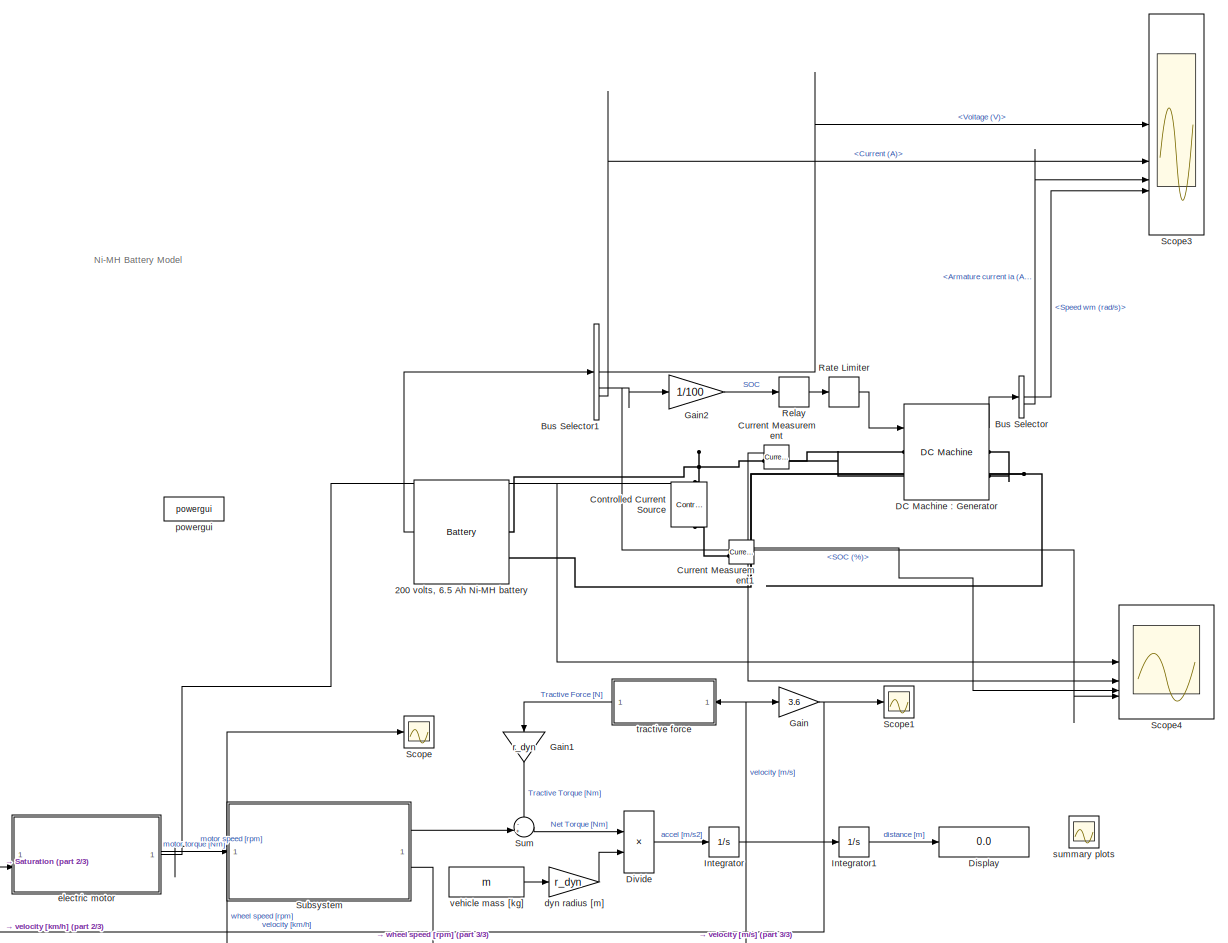
[diagram: root canvas - part 1/3, most of the canvas]
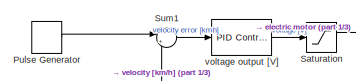
[diagram: root canvas - part 2/3, bottom left region]
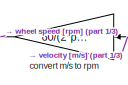
[diagram: root canvas - part 3/3, bottom center region]
MODEL slx_5a7b9795b255
KIND model
CONFIG AbsTol = auto
CONFIG EnableMultiTasking = off
CONFIG FixedStep = auto
CONFIG MaxStep = 0.05
CONFIG MinStep = auto
CONFIG RelTol = 1e-3
CONFIG SampleTimeConstraint = Unconstrained
CONFIG SolverName = VariableStepAuto
CONFIG StartTime = 0.0
CONFIG StopTime = 1000
BLOCK [Reference] 200 volts, 6.5 Ah Ni-MH battery   REF=spsBatteryLib/Battery
  LibrarySourceBlock = electricdrivelib/Extra Sources/Battery
  SourceBlock = spsBatteryLib/Battery
  SourceType = Battery
BLOCK [BusSelector] Bus Selector
  OutputSignals = Speed wm (rad/s),Armature current ia (A)
BLOCK [BusSelector] Bus Selector1
  OutputSignals = Voltage (V),SOC (%),Current (A)
BLOCK [Reference] Controlled Current Source  REF=spsControlledCurrentSourceLib/Controlled Current Source
  LibrarySourceBlock = sps_lib/Sources/Controlled Current Source
  NameLocation = left
  SourceBlock = spsControlledCurrentSourceLib/Controlled Current Source
  SourceType = Controlled Current Source
BLOCK [Reference] Current Measurement  REF=spsCurrentMeasurementLib/Current Measurement
  LibrarySourceBlock = sps_lib/Sensors and Measurements/Current Measurement
  NameLocation = top
  SourceBlock = spsCurrentMeasurementLib/Current Measurement
  SourceType = Current Measurement
  UserDataPersistent = on
BLOCK [Reference] Current Measurement1  REF=spsCurrentMeasurementLib/Current Measurement
  LibrarySourceBlock = sps_lib/Sensors and Measurements/Current Measurement
  SourceBlock = spsCurrentMeasurementLib/Current Measurement
  SourceType = Current Measurement
  UserDataPersistent = on
BLOCK [Reference] DC Machine : Generator  REF=spsDCMachineLib/DC Machine
  LibrarySourceBlock = sps_lib/Electrical Machines/DC Machine
  SourceBlock = spsDCMachineLib/DC Machine
  SourceType = DC machine
BLOCK [Display] Display
  Decimation = 1
BLOCK [Product] Divide
  Inputs = */
BLOCK [Gain] Gain
  Gain = 3.6
BLOCK [Gain] Gain1
  Gain = r_dyn
  NameLocation = left
BLOCK [Gain] Gain2
  Gain = 1/100
BLOCK [Integrator] Integrator
  LimitOutput = on
  LowerSaturationLimit = 0
BLOCK [Integrator] Integrator1
BLOCK [DiscretePulseGenerator] Pulse Generator
  Amplitude = 20
  Period = 100
  PulseType = Time based
  PulseWidth = 50
BLOCK [RateLimiter] Rate Limiter
  FallingSlewLimit = -100
  RisingSlewLimit = 100
BLOCK [Relay] Relay
  OffOutputValue = -200
  OffSwitchValue = 0.4
  OnOutputValue = 0
  OnSwitchValue = 0.95
BLOCK [Saturate] Saturation
  LowerLimit = 0
  UpperLimit = 48
BLOCK [Scope] Scope
  Floating = off
  NumInputPorts = 1
  ScopeSpecificationString = Simulink.scopes.TimeScopeBlockCfg('CurrentConfiguration', extmgr.ConfigurationSet(extmgr.Configuration('Core','General UI',true),extmgr.Configuration('Core','Source UI',true),extmgr.Configuration('Sources','WiredSimulink',true,'DataLoggingVariableName','ScopeData2'),extmgr.Configuration('Visuals','Time Domain',true,'SerializedDisplays',{struct('MinYLimReal','-110.92953','MaxYLimReal','998.36573','...<+1501ch>
BLOCK [Scope] Scope1
  Floating = off
  NumInputPorts = 1
  ScopeSpecificationString = Simulink.scopes.TimeScopeBlockCfg('CurrentConfiguration', extmgr.ConfigurationSet(extmgr.Configuration('Core','General UI',true),extmgr.Configuration('Core','Source UI',true),extmgr.Configuration('Sources','WiredSimulink',true,'DataLoggingVariableName','ScopeData2'),extmgr.Configuration('Visuals','Time Domain',true,'SerializedDisplays',{struct('MinYLimReal','-6.31861','MaxYLimReal','56.86748','YLa...<+1447ch>
BLOCK [Scope] Scope3
  Floating = off
  NumInputPorts = 4
  ScopeSpecificationString = Simulink.scopes.TimeScopeBlockCfg('CurrentConfiguration', extmgr.ConfigurationSet(extmgr.Configuration('Core','General UI',true),extmgr.Configuration('Core','Source UI',true),extmgr.Configuration('Sources','WiredSimulink',true,'DataLoggingVariableName','ScopeData1'),extmgr.Configuration('Visuals','Time Domain',true,'SerializedDisplays',{struct('MinYLimReal','-19.00599','MaxYLimReal','554.47233','Y...<+3506ch>
BLOCK [Scope] Scope4
  Floating = off
  NumInputPorts = 4
  ScopeSpecificationString = Simulink.scopes.TimeScopeBlockCfg('CurrentConfiguration', extmgr.ConfigurationSet(extmgr.Configuration('Core','General UI',true),extmgr.Configuration('Core','Source UI',true),extmgr.Configuration('Sources','WiredSimulink',true,'DataLoggingVariableName','ScopeData3'),extmgr.Configuration('Visuals','Time Domain',true,'SerializedDisplays',{struct('MinYLimReal','-500.00000','MaxYLimReal','500.00000','...<+3535ch>
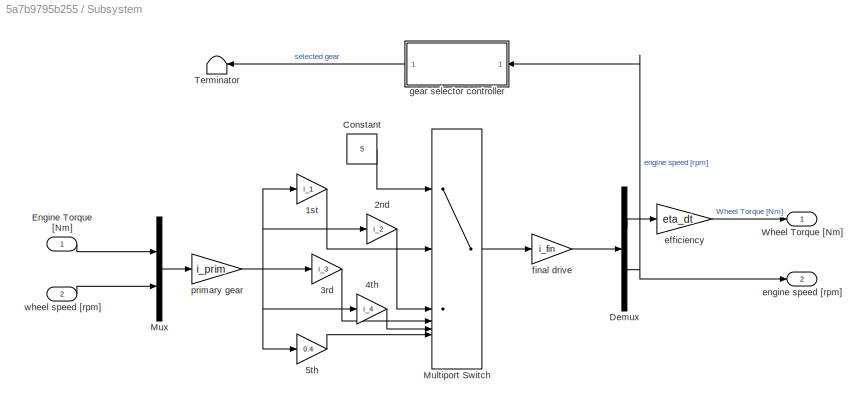
BLOCK [SubSystem] Subsystem
  PortSchema = {"entries":[{"content":{"sides":[{"content":{"connectorIds":["Out2","In1"]},"type":"ConnectorPlacement.EquallySpacedRectSide","uuid":"3db7130f-4414-4138-a483-769651bc2e03"},{"content":{"connectorIds":["Out1","In2"],"side":"RIGHT"},"type":"ConnectorPlacement.EquallySpacedRectSide","uuid":"89f2a1b6-eda5-4fe5-b7f3-89dce8f6cd7c"},{"content":{"connectorIds":[],"side":"TOP"},"type":"ConnectorPlacement.E...<+253ch>
BLOCK [Gain] Subsystem/1st
  Gain = i_1
BLOCK [Gain] Subsystem/2nd
  Gain = i_2
BLOCK [Gain] Subsystem/3rd
  Gain = i_3
BLOCK [Gain] Subsystem/4th
  Gain = i_4
BLOCK [Gain] Subsystem/5th
  Gain = 0.4
BLOCK [Constant] Subsystem/Constant
  Value = 5
BLOCK [Demux] Subsystem/Demux
  Outputs = 2
BLOCK [Inport] Subsystem/Engine Torque [Nm]
BLOCK [MultiPortSwitch] Subsystem/Multiport Switch
  InputSameDT = off
  Inputs = 5
  SaturateOnIntegerOverflow = off
BLOCK [Mux] Subsystem/Mux
  DisplayOption = bar
  Inputs = 2
BLOCK [Terminator] Subsystem/Terminator
BLOCK [Outport] Subsystem/Wheel Torque [Nm]
BLOCK [Gain] Subsystem/efficiency
  Gain = eta_dt
BLOCK [Outport] Subsystem/engine speed [rpm]
  Port = 2
BLOCK [Gain] Subsystem/final drive
  Gain = i_fin
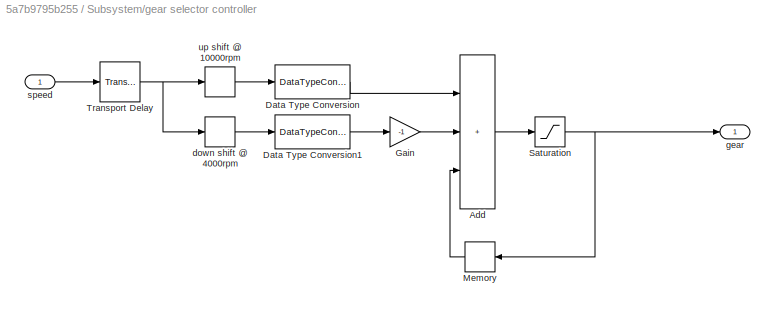
BLOCK [SubSystem] Subsystem/gear selector controller
BLOCK [Sum] Subsystem/gear selector controller/Add
  IconShape = rectangular
  Inputs = +++
BLOCK [DataTypeConversion] Subsystem/gear selector controller/Data Type Conversion
  RndMeth = Floor
  SaturateOnIntegerOverflow = off
BLOCK [DataTypeConversion] Subsystem/gear selector controller/Data Type Conversion1
  RndMeth = Floor
  SaturateOnIntegerOverflow = off
BLOCK [Gain] Subsystem/gear selector controller/Gain
  Gain = -1
BLOCK [Memory] Subsystem/gear selector controller/Memory
  InitialCondition = 1
BLOCK [Saturate] Subsystem/gear selector controller/Saturation
  LowerLimit = 1
  UpperLimit = 5
BLOCK [TransportDelay] Subsystem/gear selector controller/Transport Delay
  DelayTime = 0.01
BLOCK [HitCross] Subsystem/gear selector controller/down shift @ 4000rpm
  HitCrossingDirection = falling
  HitCrossingOffset = 2000
BLOCK [Outport] Subsystem/gear selector controller/gear
BLOCK [Inport] Subsystem/gear selector controller/speed
BLOCK [HitCross] Subsystem/gear selector controller/up shift @ 10000rpm
  HitCrossingDirection = rising
  HitCrossingOffset = 5000
BLOCK [Gain] Subsystem/primary gear
  Gain = i_prim
BLOCK [Inport] Subsystem/wheel speed [rpm]
  Port = 2
BLOCK [Sum] Sum
  Inputs = -+|
BLOCK [Sum] Sum1
  Inputs = |+-
BLOCK [Gain] convert m//s to rpm
  Gain = 60/(2*pi*r_dyn)
BLOCK [Gain] dyn radius [m]
  Gain = r_dyn
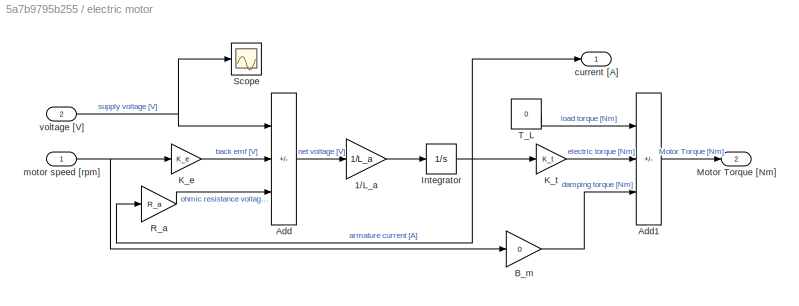
BLOCK [SubSystem] electric motor
BLOCK [Gain] electric motor/1//L_a
  Gain = 1/L_a
BLOCK [Sum] electric motor/Add
  IconShape = rectangular
  Inputs = +--
BLOCK [Sum] electric motor/Add1
  IconShape = rectangular
  Inputs = -+-
BLOCK [Gain] electric motor/B_m
  Gain = 0
BLOCK [Integrator] electric motor/Integrator
  LimitOutput = on
  LowerSaturationLimit = -400
  UpperSaturationLimit = 400
BLOCK [Gain] electric motor/K_e
  Gain = K_e
BLOCK [Gain] electric motor/K_t
  Gain = K_t
BLOCK [Outport] electric motor/Motor Torque [Nm]
  Port = 2
BLOCK [Gain] electric motor/R_a
  Gain = R_a
BLOCK [Scope] electric motor/Scope
  Floating = off
  NumInputPorts = 1
  ScopeSpecificationString = Simulink.scopes.TimeScopeBlockCfg('CurrentConfiguration', extmgr.ConfigurationSet(extmgr.Configuration('Core','General UI',true),extmgr.Configuration('Core','Source UI',true),extmgr.Configuration('Sources','WiredSimulink',true,'DataLoggingVariableName','ScopeData1'),extmgr.Configuration('Visuals','Time Domain',true,'SerializedDisplays',{struct('MinYLimReal','-4.31442','MaxYLimReal','38.82981','YLa...<+1410ch>
BLOCK [Constant] electric motor/T_L
  Value = 0
BLOCK [Outport] electric motor/current [A]
BLOCK [Inport] electric motor/motor speed [rpm]
BLOCK [Inport] electric motor/voltage [V]
  Port = 2
BLOCK [Reference] powergui  REF=sps_lib/powergui
  SourceBlock = sps_lib/powergui
  SourceType = PSB option menu block
BLOCK [Scope] summary plots
  Floating = on
  NumInputPorts = 1
  ScopeSpecificationString = Simulink.scopes.TimeScopeBlockCfg('CurrentConfiguration', extmgr.ConfigurationSet(extmgr.Configuration('Core','General UI',true),extmgr.Configuration('Core','Source UI',true),extmgr.Configuration('Sources','WiredSimulink',true,'DataLoggingVariableName','ScopeData1'),extmgr.Configuration('Visuals','Time Domain',true,'SerializedDisplays',{struct('MinYLimReal','-2907.75391','MaxYLimReal','26169.78522...<+5438ch>
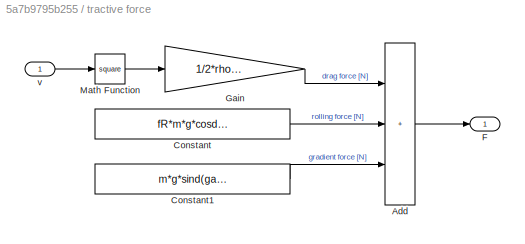
BLOCK [SubSystem] tractive force
BLOCK [Sum] tractive force/Add
  IconShape = rectangular
  Inputs = +++
BLOCK [Constant] tractive force/Constant
  Value = fR*m*g*cosd(gamma)
BLOCK [Constant] tractive force/Constant1
  Value = m*g*sind(gamma)
BLOCK [Outport] tractive force/F
BLOCK [Gain] tractive force/Gain
  Gain = 1/2*rho*Af*Cd
BLOCK [Math] tractive force/Math Function
  Operator = square
BLOCK [Inport] tractive force/v
BLOCK [Constant] vehicle mass [kg]
  Value = m
BLOCK [Reference] voltage output [V]  REF=slpidlib/PID Controller
  SourceBlock = slpidlib/PID Controller
  SourceType = PID 1dof
ANNOTATION (root): Ni-MH Battery Model
LINE 200 volts, 6.5 Ah Ni-MH battery :1 -> Bus Selector1:1
LINE Bus Selector1:1 -> Scope3:1
NET Bus Selector1:2 -> Gain2:1, Scope4:4
LINE Bus Selector1:3 -> Scope3:2
LINE Bus Selector:1 -> Scope3:4
LINE Bus Selector:2 -> Scope3:3
LINE Current Measurement1:1 -> Scope4:3
LINE Current Measurement:1 -> Scope4:2
LINE DC Machine : Generator:1 -> Bus Selector:1
LINE Divide:1 -> Integrator:1
LINE Gain1:1 -> Sum:1
LINE Gain2:1 -> Relay:1
NET Gain:1 -> Scope1:1, Sum1:2
LINE Integrator1:1 -> Display:1
NET Integrator:1 -> Gain:1, Integrator1:1, convert m//s to rpm:1, tractive force:1
LINE Pulse Generator:1 -> Sum1:1
LINE Rate Limiter:1 -> DC Machine : Generator:1
LINE Relay:1 -> Rate Limiter:1
LINE Saturation:1 -> electric motor:2
LINE Subsystem/1st:1 -> Subsystem/Multiport Switch:2
LINE Subsystem/2nd:1 -> Subsystem/Multiport Switch:3
LINE Subsystem/3rd:1 -> Subsystem/Multiport Switch:4
LINE Subsystem/4th:1 -> Subsystem/Multiport Switch:5
LINE Subsystem/5th:1 -> Subsystem/Multiport Switch:6
LINE Subsystem/Constant:1 -> Subsystem/Multiport Switch:1
LINE Subsystem/Demux:1 -> Subsystem/efficiency:1
NET Subsystem/Demux:2 -> Subsystem/engine speed [rpm]:1, Subsystem/gear selector controller:1
LINE Subsystem/Engine Torque [Nm]:1 -> Subsystem/Mux:1
LINE Subsystem/Multiport Switch:1 -> Subsystem/final drive:1
LINE Subsystem/Mux:1 -> Subsystem/primary gear:1
LINE Subsystem/efficiency:1 -> Subsystem/Wheel Torque [Nm]:1
LINE Subsystem/final drive:1 -> Subsystem/Demux:1
LINE Subsystem/gear selector controller/Add:1 -> Subsystem/gear selector controller/Saturation:1
LINE Subsystem/gear selector controller/Data Type Conversion1:1 -> Subsystem/gear selector controller/Gain:1
LINE Subsystem/gear selector controller/Data Type Conversion:1 -> Subsystem/gear selector controller/Add:1
LINE Subsystem/gear selector controller/Gain:1 -> Subsystem/gear selector controller/Add:2
LINE Subsystem/gear selector controller/Memory:1 -> Subsystem/gear selector controller/Add:3
NET Subsystem/gear selector controller/Saturation:1 -> Subsystem/gear selector controller/Memory:1, Subsystem/gear selector controller/gear:1
NET Subsystem/gear selector controller/Transport Delay:1 -> Subsystem/gear selector controller/down shift @ 4000rpm:1, Subsystem/gear selector controller/up shift @ 10000rpm:1
LINE Subsystem/gear selector controller/down shift @ 4000rpm:1 -> Subsystem/gear selector controller/Data Type Conversion1:1
LINE Subsystem/gear selector controller/speed:1 -> Subsystem/gear selector controller/Transport Delay:1
LINE Subsystem/gear selector controller/up shift @ 10000rpm:1 -> Subsystem/gear selector controller/Data Type Conversion:1
LINE Subsystem/gear selector controller:1 -> Subsystem/Terminator:1
NET Subsystem/primary gear:1 -> Subsystem/1st:1, Subsystem/2nd:1, Subsystem/3rd:1, Subsystem/4th:1, Subsystem/5th:1
LINE Subsystem/wheel speed [rpm]:1 -> Subsystem/Mux:2
LINE Subsystem:1 -> Sum:2
LINE Subsystem:2 -> electric motor:1
LINE Sum1:1 -> voltage output [V]:1
LINE Sum:1 -> Divide:1
NET convert m//s to rpm:1 -> Scope:1, Subsystem:2
LINE dyn radius [m]:1 -> Divide:2
LINE electric motor/1//L_a:1 -> electric motor/Integrator:1
LINE electric motor/Add1:1 -> electric motor/Motor Torque [Nm]:1
LINE electric motor/Add:1 -> electric motor/1//L_a:1
LINE electric motor/B_m:1 -> electric motor/Add1:3
NET electric motor/Integrator:1 -> electric motor/K_t:1, electric motor/R_a:1, electric motor/current [A]:1
LINE electric motor/K_e:1 -> electric motor/Add:2
LINE electric motor/K_t:1 -> electric motor/Add1:2
LINE electric motor/R_a:1 -> electric motor/Add:3
LINE electric motor/T_L:1 -> electric motor/Add1:1
NET electric motor/motor speed [rpm]:1 -> electric motor/B_m:1, electric motor/K_e:1
NET electric motor/voltage [V]:1 -> electric motor/Add:1, electric motor/Scope:1
NET electric motor:1 -> Controlled Current Source:1, Scope4:1
LINE electric motor:2 -> Subsystem:1
LINE tractive force/Add:1 -> tractive force/F:1
LINE tractive force/Constant1:1 -> tractive force/Add:3
LINE tractive force/Constant:1 -> tractive force/Add:2
LINE tractive force/Gain:1 -> tractive force/Add:1
LINE tractive force/Math Function:1 -> tractive force/Gain:1
LINE tractive force/v:1 -> tractive force/Math Function:1
LINE tractive force:1 -> Gain1:1
LINE vehicle mass [kg]:1 -> dyn radius [m]:1
LINE voltage output [V]:1 -> Saturation:1
PNET net1: 200 volts, 6.5 Ah Ni-MH battery :LConn1 -- Controlled Current Source:LConn1 -- Current Measurement:RConn1
PNET net2: 200 volts, 6.5 Ah Ni-MH battery :LConn2 -- Current Measurement1:RConn1 -- DC Machine : Generator:RConn1 -- DC Machine : Generator:RConn2
PLINE Controlled Current Source:RConn1 -- Current Measurement1:LConn1
PNET net3: Current Measurement:LConn1 -- DC Machine : Generator:LConn1 -- DC Machine : Generator:LConn2
note: NET lines group one-source signal fan-out (src -> all destinations, sorted); 1:1 wires keep LINE; PNET lines group multi-terminal physical nets as a canonical sorted terminal list (undirected conserving connections); 2-terminal nets keep the pairwise PLINE form
